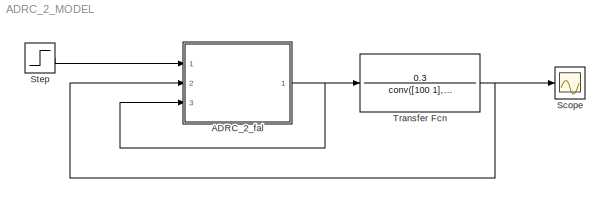
MODEL ADRC_2_MODEL
KIND model
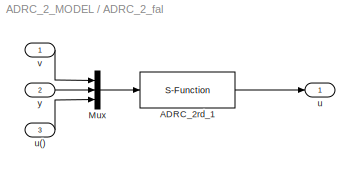
BLOCK [SubSystem] ADRC_2_fal
  AncestorBlock = ADRC/ADRC/ADRC_2rd/ADRC_2_fal
  FunctionWithSeparateData = off
  MaskCallbackString = |||||||||
  MaskEnableString = on,on,on,on,on,on,on,on,on,on
  MaskHideContents = off
  MaskIconFrame = on
  MaskIconOpaque = on
  MaskIconRotate = none
  MaskIconUnits = autoscale
  MaskPortRotate = default
  MaskPromptString = r|h|B01=|B02=|B03=|D=|b|k1=|k2=|Ds=
  MaskStyleString = edit,edit,edit,edit,edit,edit,edit,edit,edit,edit
  MaskToolTipString = on,on,on,on,on,on,on,on,on,on
  MaskTunableValueString = on,on,on,on,on,on,on,on,on,on
  MaskValueString = 0.01|0.1|100|300|1000|0.1|1|10|5|0.1
  MaskVariables = r=@1;h=@2;B01=@3;B02=@4;B03=@5;D=@6;b=@7;k1=@8;k2=@9;Ds=@10;
  MaskVisibilityString = on,on,on,on,on,on,on,on,on,on
  MinAlgLoopOccurrences = off
  Opaque = off
  Ports = [3, 1]
  PropExecContextOutsideSubsystem = off
  RTWSystemCode = Auto
  RequestExecContextInheritance = off
  SID = 4
BLOCK [S-Function] ADRC_2_fal/ADRC_2rd_1
  EnableBusSupport = off
  FunctionName = ADRC_2fal
  MaskCallbackString = |||||||||
  MaskEnableString = on,on,on,on,on,on,on,on,on,on
  MaskIconFrame = on
  MaskIconOpaque = on
  MaskIconRotate = none
  MaskIconUnits = autoscale
  MaskPortRotate = default
  MaskPromptString = r=|h=|B01=|B02=|B03=|D|b|k1|k2|Ds
  MaskStyleString = edit,edit,edit,edit,edit,edit,edit,edit,edit,edit
  MaskToolTipString = on,on,on,on,on,on,on,on,on,on
  MaskTunableValueString = on,on,on,on,on,on,on,on,on,on
  MaskValueString = 0|0|0|0|0|0|0|0|0|0
  MaskVariables = r=@1;h=@2;B01=@3;B02=@4;B03=@5;D=@6;b=@7;k1=@8;k2=@9;Ds=@10;
  MaskVisibilityString = on,on,on,on,on,on,on,on,on,on
  Parameters = r,h,B01,B02,B03,D,b,k1,k2,Ds
  Ports = [1, 1]
  SID = 4:62
BLOCK [Mux] ADRC_2_fal/Mux
  DisplayOption = bar
  Inputs = 3
  Ports = [3, 1]
  SID = 4:144
BLOCK [Outport] ADRC_2_fal/u
  IconDisplay = Port number
  SID = 4:141
BLOCK [Inport] ADRC_2_fal/u()
  IconDisplay = Port number
  Port = 3
  SID = 4:145
BLOCK [Inport] ADRC_2_fal/v
  IconDisplay = Port number
  SID = 4:142
BLOCK [Inport] ADRC_2_fal/y
  IconDisplay = Port number
  Port = 2
  SID = 4:143
BLOCK [Scope] Scope
  DataFormat = StructureWithTime
  Floating = off
  NumInputPorts = 1
  Ports = [1]
  SID = 2
  SampleTime = 0
BLOCK [Step] Step
  SID = 1
  SampleTime = 0
BLOCK [TransferFcn] Transfer Fcn
  Denominator = conv([100 1],[90 1])
  Numerator = 0.3
  SID = 3
LINE ADRC_2_fal/ADRC_2rd_1:1 -> ADRC_2_fal/u:1
LINE ADRC_2_fal/Mux:1 -> ADRC_2_fal/ADRC_2rd_1:1
LINE ADRC_2_fal/u():1 -> ADRC_2_fal/Mux:3
LINE ADRC_2_fal/v:1 -> ADRC_2_fal/Mux:1
LINE ADRC_2_fal/y:1 -> ADRC_2_fal/Mux:2
NET ADRC_2_fal:1 -> ADRC_2_fal:3, Transfer Fcn:1
LINE Step:1 -> ADRC_2_fal:1
NET Transfer Fcn:1 -> ADRC_2_fal:2, Scope:1
note: NET lines group one-source signal fan-out (src -> all destinations, sorted); 1:1 wires keep LINE
